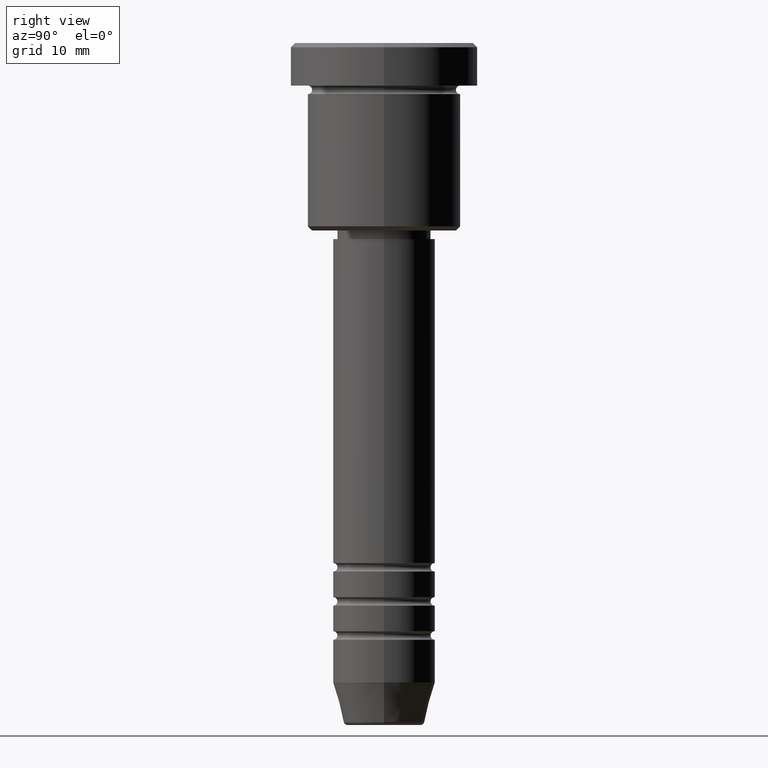
[diagram: clean part render]
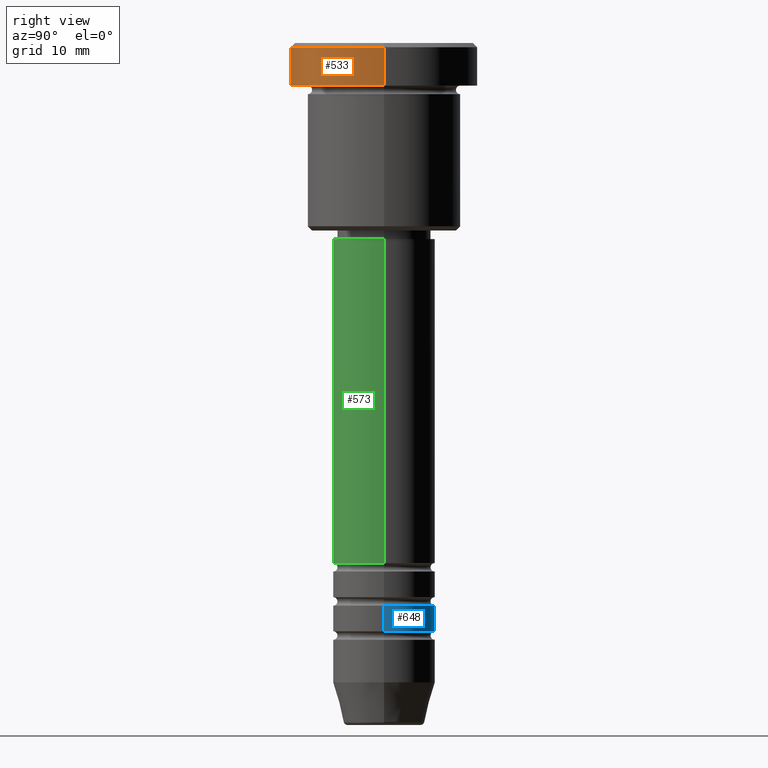
[diagram: same view with three faces highlighted in distinct colors, each labeled with its STEP entity id]
A machine part, right view with three faces highlighted in distinct colors.
Their STEP definitions:

[orange] entity #533 — the highlighted cylindrical surface (partial cylindrical patch) has radius 11 mm, axis along (-0, -0, 1).
#63 = ORIENTED_EDGE ( 'NONE', *, *, #740, .F. ) ;
#98 = ORIENTED_EDGE ( 'NONE', *, *, #818, .T. ) ;
#114 = LINE ( 'NONE', #407, #1121 ) ;
#231 = VERTEX_POINT ( 'NONE', #944 ) ;
#240 = CARTESIAN_POINT ( 'NONE',  ( -11.00000000000000000, 1.347111479062088602E-15, -5.000000000000000000 ) ) ;
#315 = CARTESIAN_POINT ( 'NONE',  ( -11.00000000000000178, 1.347111479062088602E-15, 0.000000000000000000 ) ) ;
#325 = EDGE_CURVE ( 'NONE', #231, #1040, #789, .T. ) ;
#330 = AXIS2_PLACEMENT_3D ( 'NONE', #915, #366, #362 ) ;
#332 = VECTOR ( 'NONE', #583, 1000.000000000000000 ) ;
#362 = DIRECTION ( 'NONE',  ( 1.000000000000000000, 0.000000000000000000, 0.000000000000000000 ) ) ;
#366 = DIRECTION ( 'NONE',  ( -0.000000000000000000, -0.000000000000000000, 1.000000000000000000 ) ) ;
#396 = ORIENTED_EDGE ( 'NONE', *, *, #325, .T. ) ;
#407 = CARTESIAN_POINT ( 'NONE',  ( 11.00000000000000178, 0.000000000000000000, 0.000000000000000000 ) ) ;
#411 = ORIENTED_EDGE ( 'NONE', *, *, #1146, .T. ) ;
#435 = DIRECTION ( 'NONE',  ( -0.000000000000000000, -0.000000000000000000, 1.000000000000000000 ) ) ;
#451 = CARTESIAN_POINT ( 'NONE',  ( -11.00000000000000178, 1.347111479062088602E-15, -0.5000000000000159872 ) ) ;
#497 = DIRECTION ( 'NONE',  ( 0.000000000000000000, 0.000000000000000000, -1.000000000000000000 ) ) ;
#533 = ADVANCED_FACE ( 'NONE', ( #722 ), #1163, .T. ) ;
#571 = CARTESIAN_POINT ( 'NONE',  ( 0.000000000000000000, 0.000000000000000000, -0.5000000000000159872 ) ) ;
#583 = DIRECTION ( 'NONE',  ( -0.000000000000000000, -0.000000000000000000, 1.000000000000000000 ) ) ;
#609 = EDGE_LOOP ( 'NONE', ( #63, #98, #411, #396 ) ) ;
#705 = CARTESIAN_POINT ( 'NONE',  ( 11.00000000000000000, 0.000000000000000000, -5.000000000000000000 ) ) ;
#722 = FACE_OUTER_BOUND ( 'NONE', #609, .T. ) ;
#740 = EDGE_CURVE ( 'NONE', #858, #1040, #846, .T. ) ;
#761 = DIRECTION ( 'NONE',  ( -0.000000000000000000, -0.000000000000000000, 1.000000000000000000 ) ) ;
#789 = CIRCLE ( 'NONE', #981, 11.00000000000000178 ) ;
#818 = EDGE_CURVE ( 'NONE', #858, #889, #880, .T. ) ;
#846 = LINE ( 'NONE', #315, #332 ) ;
#858 = VERTEX_POINT ( 'NONE', #240 ) ;
#869 = CARTESIAN_POINT ( 'NONE',  ( 0.000000000000000000, 0.000000000000000000, -5.000000000000000000 ) ) ;
#876 = DIRECTION ( 'NONE',  ( 1.000000000000000000, 0.000000000000000000, 0.000000000000000000 ) ) ;
#880 = CIRCLE ( 'NONE', #959, 11.00000000000000000 ) ;
#889 = VERTEX_POINT ( 'NONE', #705 ) ;
#915 = CARTESIAN_POINT ( 'NONE',  ( 0.000000000000000000, 0.000000000000000000, 0.000000000000000000 ) ) ;
#937 = DIRECTION ( 'NONE',  ( 1.000000000000000000, 0.000000000000000000, 0.000000000000000000 ) ) ;
#944 = CARTESIAN_POINT ( 'NONE',  ( 11.00000000000000178, 0.000000000000000000, -0.5000000000000159872 ) ) ;
#959 = AXIS2_PLACEMENT_3D ( 'NONE', #869, #435, #876 ) ;
#981 = AXIS2_PLACEMENT_3D ( 'NONE', #571, #497, #937 ) ;
#1040 = VERTEX_POINT ( 'NONE', #451 ) ;
#1121 = VECTOR ( 'NONE', #761, 1000.000000000000000 ) ;
#1146 = EDGE_CURVE ( 'NONE', #889, #231, #114, .T. ) ;
#1163 = CYLINDRICAL_SURFACE ( 'NONE', #330, 11.00000000000000178 ) ;

[blue] entity #648 — the highlighted cylindrical surface (partial cylindrical patch) has radius 6 mm, axis along (-0, -0, 1).
#30 = VECTOR ( 'NONE', #662, 1000.000000000000000 ) ;
#31 = CIRCLE ( 'NONE', #942, 5.999999999999999112 ) ;
#107 = DIRECTION ( 'NONE',  ( 1.000000000000000000, 0.000000000000000000, 0.000000000000000000 ) ) ;
#118 = CARTESIAN_POINT ( 'NONE',  ( -6.000000000000000000, 7.347880794884119736E-16, -69.00000000000000000 ) ) ;
#119 = ORIENTED_EDGE ( 'NONE', *, *, #952, .F. ) ;
#134 = DIRECTION ( 'NONE',  ( -0.000000000000000000, -0.000000000000000000, 1.000000000000000000 ) ) ;
#157 = AXIS2_PLACEMENT_3D ( 'NONE', #764, #134, #491 ) ;
#173 = CARTESIAN_POINT ( 'NONE',  ( 0.000000000000000000, 0.000000000000000000, -66.00000000000000000 ) ) ;
#212 = CARTESIAN_POINT ( 'NONE',  ( 0.000000000000000000, 0.000000000000000000, 0.000000000000000000 ) ) ;
#242 = ORIENTED_EDGE ( 'NONE', *, *, #766, .T. ) ;
#320 = CARTESIAN_POINT ( 'NONE',  ( -6.000000000000000000, 7.347880794884119736E-16, 0.000000000000000000 ) ) ;
#350 = VECTOR ( 'NONE', #1009, 1000.000000000000000 ) ;
#395 = LINE ( 'NONE', #320, #30 ) ;
#460 = CIRCLE ( 'NONE', #157, 6.000000000000000000 ) ;
#491 = DIRECTION ( 'NONE',  ( 1.000000000000000000, 0.000000000000000000, 0.000000000000000000 ) ) ;
#494 = ORIENTED_EDGE ( 'NONE', *, *, #611, .F. ) ;
#567 = LINE ( 'NONE', #643, #350 ) ;
#570 = CARTESIAN_POINT ( 'NONE',  ( 5.999999999999999112, 0.000000000000000000, -66.00000000000000000 ) ) ;
#595 = EDGE_LOOP ( 'NONE', ( #892, #242, #119, #494 ) ) ;
#611 = EDGE_CURVE ( 'NONE', #1056, #680, #567, .T. ) ;
#635 = FACE_OUTER_BOUND ( 'NONE', #595, .T. ) ;
#643 = CARTESIAN_POINT ( 'NONE',  ( 6.000000000000000000, 0.000000000000000000, 0.000000000000000000 ) ) ;
#648 = ADVANCED_FACE ( 'NONE', ( #635 ), #906, .T. ) ;
#662 = DIRECTION ( 'NONE',  ( -0.000000000000000000, -0.000000000000000000, 1.000000000000000000 ) ) ;
#680 = VERTEX_POINT ( 'NONE', #570 ) ;
#733 = VERTEX_POINT ( 'NONE', #118 ) ;
#764 = CARTESIAN_POINT ( 'NONE',  ( 0.000000000000000000, 0.000000000000000000, -69.00000000000000000 ) ) ;
#766 = EDGE_CURVE ( 'NONE', #733, #854, #395, .T. ) ;
#788 = CARTESIAN_POINT ( 'NONE',  ( -5.999999999999999112, 7.347880794884118750E-16, -66.00000000000000000 ) ) ;
#854 = VERTEX_POINT ( 'NONE', #788 ) ;
#892 = ORIENTED_EDGE ( 'NONE', *, *, #1092, .T. ) ;
#906 = CYLINDRICAL_SURFACE ( 'NONE', #1085, 6.000000000000000000 ) ;
#909 = DIRECTION ( 'NONE',  ( 1.000000000000000000, 0.000000000000000000, 0.000000000000000000 ) ) ;
#942 = AXIS2_PLACEMENT_3D ( 'NONE', #173, #1004, #909 ) ;
#952 = EDGE_CURVE ( 'NONE', #680, #854, #31, .T. ) ;
#1004 = DIRECTION ( 'NONE',  ( -0.000000000000000000, -0.000000000000000000, 1.000000000000000000 ) ) ;
#1009 = DIRECTION ( 'NONE',  ( -0.000000000000000000, -0.000000000000000000, 1.000000000000000000 ) ) ;
#1056 = VERTEX_POINT ( 'NONE', #1097 ) ;
#1085 = AXIS2_PLACEMENT_3D ( 'NONE', #212, #1105, #107 ) ;
#1092 = EDGE_CURVE ( 'NONE', #1056, #733, #460, .T. ) ;
#1097 = CARTESIAN_POINT ( 'NONE',  ( 6.000000000000000000, 0.000000000000000000, -69.00000000000000000 ) ) ;
#1105 = DIRECTION ( 'NONE',  ( -0.000000000000000000, -0.000000000000000000, 1.000000000000000000 ) ) ;

[green] entity #573 — the highlighted cylindrical surface (partial cylindrical patch) has radius 6 mm, axis along (-0, -0, 1).
#5 = ORIENTED_EDGE ( 'NONE', *, *, #755, .F. ) ;
#10 = VECTOR ( 'NONE', #1011, 1000.000000000000000 ) ;
#16 = CARTESIAN_POINT ( 'NONE',  ( -6.000000000000000000, 7.347880794884119736E-16, -61.00000000000000711 ) ) ;
#34 = CARTESIAN_POINT ( 'NONE',  ( 0.000000000000000000, 0.000000000000000000, -23.00000000000000000 ) ) ;
#60 = VERTEX_POINT ( 'NONE', #1182 ) ;
#83 = CARTESIAN_POINT ( 'NONE',  ( 6.000000000000000000, 0.000000000000000000, -23.00000000000000000 ) ) ;
#133 = AXIS2_PLACEMENT_3D ( 'NONE', #553, #1006, #745 ) ;
#176 = FACE_OUTER_BOUND ( 'NONE', #967, .T. ) ;
#194 = AXIS2_PLACEMENT_3D ( 'NONE', #998, #646, #815 ) ;
#210 = ORIENTED_EDGE ( 'NONE', *, *, #612, .T. ) ;
#267 = LINE ( 'NONE', #739, #10 ) ;
#300 = CARTESIAN_POINT ( 'NONE',  ( 6.000000000000000000, 0.000000000000000000, -61.00000000000000711 ) ) ;
#305 = VERTEX_POINT ( 'NONE', #300 ) ;
#371 = CIRCLE ( 'NONE', #749, 6.000000000000000000 ) ;
#471 = DIRECTION ( 'NONE',  ( -0.000000000000000000, -0.000000000000000000, 1.000000000000000000 ) ) ;
#553 = CARTESIAN_POINT ( 'NONE',  ( 0.000000000000000000, 0.000000000000000000, -61.00000000000000711 ) ) ;
#573 = ADVANCED_FACE ( 'NONE', ( #176 ), #1183, .T. ) ;
#577 = DIRECTION ( 'NONE',  ( 1.000000000000000000, 0.000000000000000000, 0.000000000000000000 ) ) ;
#594 = CARTESIAN_POINT ( 'NONE',  ( 6.000000000000000000, 0.000000000000000000, 0.000000000000000000 ) ) ;
#599 = VECTOR ( 'NONE', #471, 1000.000000000000000 ) ;
#612 = EDGE_CURVE ( 'NONE', #1164, #305, #655, .T. ) ;
#633 = VERTEX_POINT ( 'NONE', #83 ) ;
#646 = DIRECTION ( 'NONE',  ( -0.000000000000000000, -0.000000000000000000, 1.000000000000000000 ) ) ;
#652 = EDGE_CURVE ( 'NONE', #305, #633, #1026, .T. ) ;
#655 = CIRCLE ( 'NONE', #133, 6.000000000000000000 ) ;
#739 = CARTESIAN_POINT ( 'NONE',  ( -6.000000000000000000, 7.347880794884119736E-16, 0.000000000000000000 ) ) ;
#745 = DIRECTION ( 'NONE',  ( 1.000000000000000000, 0.000000000000000000, 0.000000000000000000 ) ) ;
#749 = AXIS2_PLACEMENT_3D ( 'NONE', #34, #777, #577 ) ;
#755 = EDGE_CURVE ( 'NONE', #60, #633, #371, .T. ) ;
#777 = DIRECTION ( 'NONE',  ( -0.000000000000000000, -0.000000000000000000, 1.000000000000000000 ) ) ;
#815 = DIRECTION ( 'NONE',  ( 1.000000000000000000, 0.000000000000000000, 0.000000000000000000 ) ) ;
#967 = EDGE_LOOP ( 'NONE', ( #1159, #210, #1070, #5 ) ) ;
#998 = CARTESIAN_POINT ( 'NONE',  ( 0.000000000000000000, 0.000000000000000000, 0.000000000000000000 ) ) ;
#1006 = DIRECTION ( 'NONE',  ( -0.000000000000000000, -0.000000000000000000, 1.000000000000000000 ) ) ;
#1011 = DIRECTION ( 'NONE',  ( -0.000000000000000000, -0.000000000000000000, 1.000000000000000000 ) ) ;
#1026 = LINE ( 'NONE', #594, #599 ) ;
#1029 = EDGE_CURVE ( 'NONE', #1164, #60, #267, .T. ) ;
#1070 = ORIENTED_EDGE ( 'NONE', *, *, #652, .T. ) ;
#1159 = ORIENTED_EDGE ( 'NONE', *, *, #1029, .F. ) ;
#1164 = VERTEX_POINT ( 'NONE', #16 ) ;
#1182 = CARTESIAN_POINT ( 'NONE',  ( -6.000000000000000000, 7.347880794884119736E-16, -23.00000000000000000 ) ) ;
#1183 = CYLINDRICAL_SURFACE ( 'NONE', #194, 6.000000000000000000 ) ;